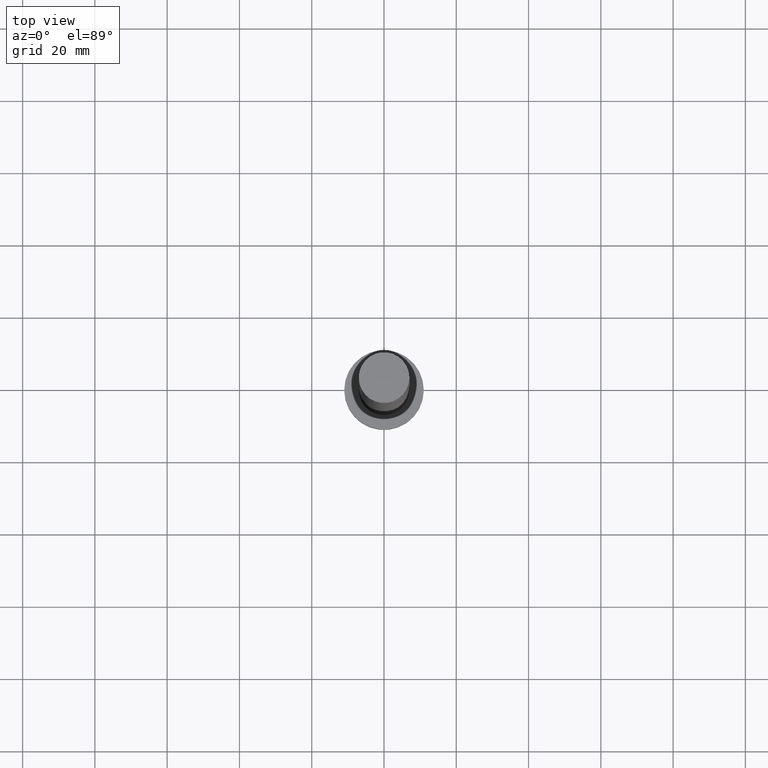
[diagram: clean part render]
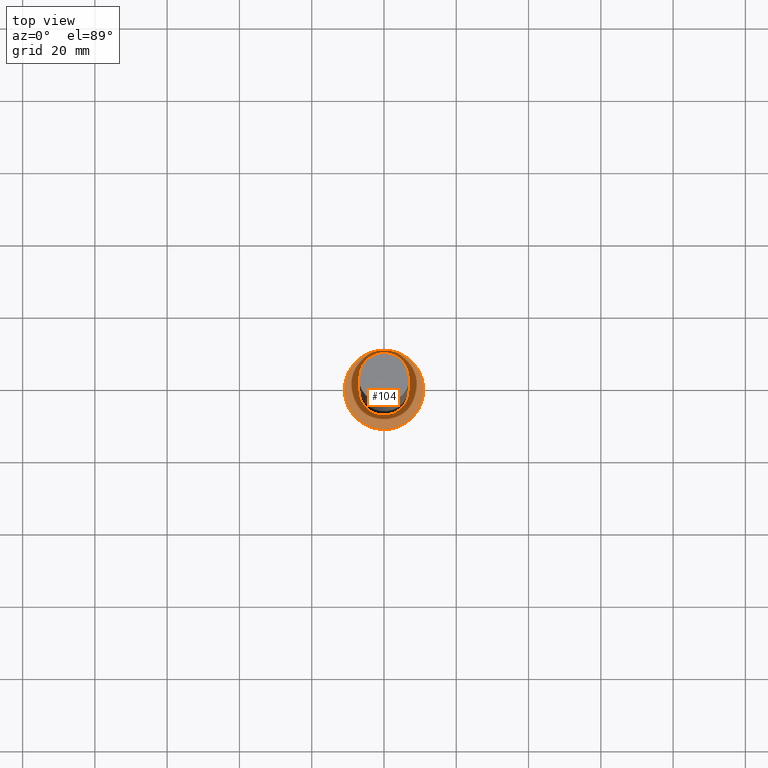
[diagram: same view with one face highlighted and labeled with its STEP entity id]
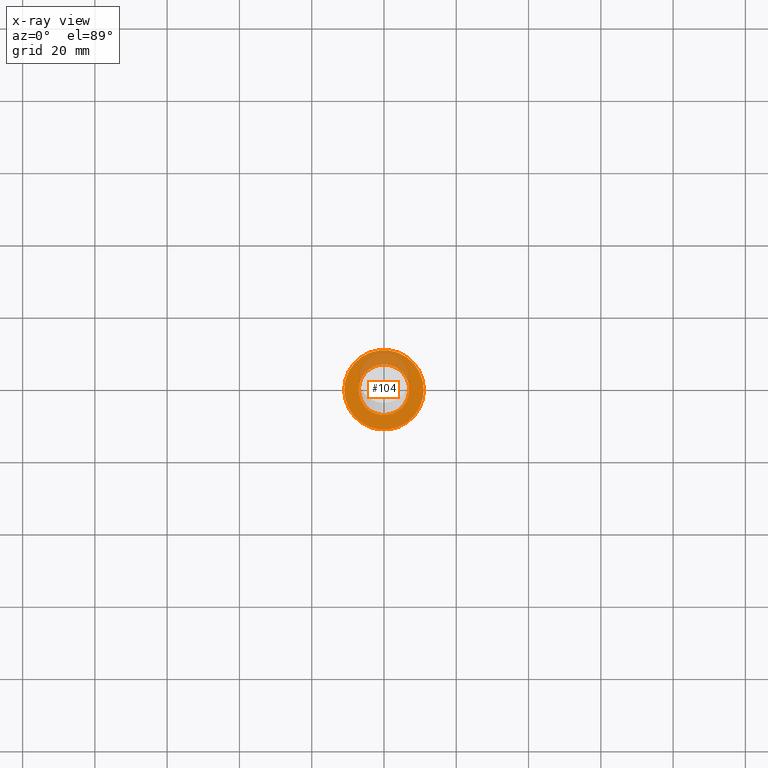
[diagram: x-ray of the same camera — body ghosted, the highlighted face saturated]
A machine part, top view. The second image highlights one B-rep face of the part: STEP entity #104.
The next image is the same camera in x-ray: the body ghosted, the highlighted face saturated — about 21% of this face is hidden behind the body in this view.
In plain terms, the highlighted planar face has unit normal (0, 0, 1).
Its self-contained STEP definition (entity closure, byte-faithful):
#8 = VERTEX_POINT ( 'NONE', #11 ) ;
#11 = CARTESIAN_POINT ( 'NONE',  ( 7.000000000000000000, 8.572527594031473190E-16, 7.000000000000000000 ) ) ;
#14 = EDGE_CURVE ( 'NONE', #206, #252, #129, .T. ) ;
#28 = DIRECTION ( 'NONE',  ( 0.000000000000000000, 0.000000000000000000, 1.000000000000000000 ) ) ;
#46 = CARTESIAN_POINT ( 'NONE',  ( -11.00000000000000000, 0.000000000000000000, 7.000000000000000000 ) ) ;
#60 = DIRECTION ( 'NONE',  ( 1.000000000000000000, 0.000000000000000000, 0.000000000000000000 ) ) ;
#82 = ORIENTED_EDGE ( 'NONE', *, *, #116, .F. ) ;
#83 = CARTESIAN_POINT ( 'NONE',  ( -7.000000000000000000, 0.000000000000000000, 7.000000000000000000 ) ) ;
#93 = EDGE_LOOP ( 'NONE', ( #228, #82 ) ) ;
#103 = DIRECTION ( 'NONE',  ( 1.000000000000000000, 0.000000000000000000, 0.000000000000000000 ) ) ;
#104 = ADVANCED_FACE ( 'NONE', ( #141, #183 ), #165, .T. ) ;
#105 = DIRECTION ( 'NONE',  ( 0.000000000000000000, 0.000000000000000000, 1.000000000000000000 ) ) ;
#106 = ORIENTED_EDGE ( 'NONE', *, *, #163, .T. ) ;
#108 = ORIENTED_EDGE ( 'NONE', *, *, #14, .T. ) ;
#113 = VERTEX_POINT ( 'NONE', #83 ) ;
#115 = AXIS2_PLACEMENT_3D ( 'NONE', #123, #201, #103 ) ;
#116 = EDGE_CURVE ( 'NONE', #8, #113, #208, .T. ) ;
#121 = CARTESIAN_POINT ( 'NONE',  ( 0.000000000000000000, 0.000000000000000000, 7.000000000000000000 ) ) ;
#123 = CARTESIAN_POINT ( 'NONE',  ( 0.000000000000000000, 0.000000000000000000, 7.000000000000000000 ) ) ;
#125 = CARTESIAN_POINT ( 'NONE',  ( 0.000000000000000000, 0.000000000000000000, 7.000000000000000000 ) ) ;
#129 = CIRCLE ( 'NONE', #176, 11.00000000000000000 ) ;
#131 = DIRECTION ( 'NONE',  ( 1.000000000000000000, 0.000000000000000000, 0.000000000000000000 ) ) ;
#141 = FACE_BOUND ( 'NONE', #93, .T. ) ;
#144 = CIRCLE ( 'NONE', #212, 11.00000000000000000 ) ;
#147 = CARTESIAN_POINT ( 'NONE',  ( 11.00000000000000000, 1.347111479062088405E-15, 7.000000000000000000 ) ) ;
#153 = EDGE_CURVE ( 'NONE', #113, #8, #217, .T. ) ;
#163 = EDGE_CURVE ( 'NONE', #252, #206, #144, .T. ) ;
#165 = PLANE ( 'NONE',  #197 ) ;
#172 = DIRECTION ( 'NONE',  ( 0.000000000000000000, 0.000000000000000000, 1.000000000000000000 ) ) ;
#176 = AXIS2_PLACEMENT_3D ( 'NONE', #190, #172, #131 ) ;
#183 = FACE_OUTER_BOUND ( 'NONE', #250, .T. ) ;
#184 = DIRECTION ( 'NONE',  ( 1.000000000000000000, 0.000000000000000000, 0.000000000000000000 ) ) ;
#190 = CARTESIAN_POINT ( 'NONE',  ( 0.000000000000000000, 0.000000000000000000, 7.000000000000000000 ) ) ;
#194 = AXIS2_PLACEMENT_3D ( 'NONE', #242, #28, #60 ) ;
#197 = AXIS2_PLACEMENT_3D ( 'NONE', #121, #105, #199 ) ;
#199 = DIRECTION ( 'NONE',  ( 1.000000000000000000, 0.000000000000000000, -0.000000000000000000 ) ) ;
#201 = DIRECTION ( 'NONE',  ( 0.000000000000000000, 0.000000000000000000, 1.000000000000000000 ) ) ;
#204 = DIRECTION ( 'NONE',  ( 0.000000000000000000, 0.000000000000000000, 1.000000000000000000 ) ) ;
#206 = VERTEX_POINT ( 'NONE', #46 ) ;
#208 = CIRCLE ( 'NONE', #194, 7.000000000000000000 ) ;
#212 = AXIS2_PLACEMENT_3D ( 'NONE', #125, #204, #184 ) ;
#217 = CIRCLE ( 'NONE', #115, 7.000000000000000000 ) ;
#228 = ORIENTED_EDGE ( 'NONE', *, *, #153, .F. ) ;
#242 = CARTESIAN_POINT ( 'NONE',  ( 0.000000000000000000, 0.000000000000000000, 7.000000000000000000 ) ) ;
#250 = EDGE_LOOP ( 'NONE', ( #108, #106 ) ) ;
#252 = VERTEX_POINT ( 'NONE', #147 ) ;